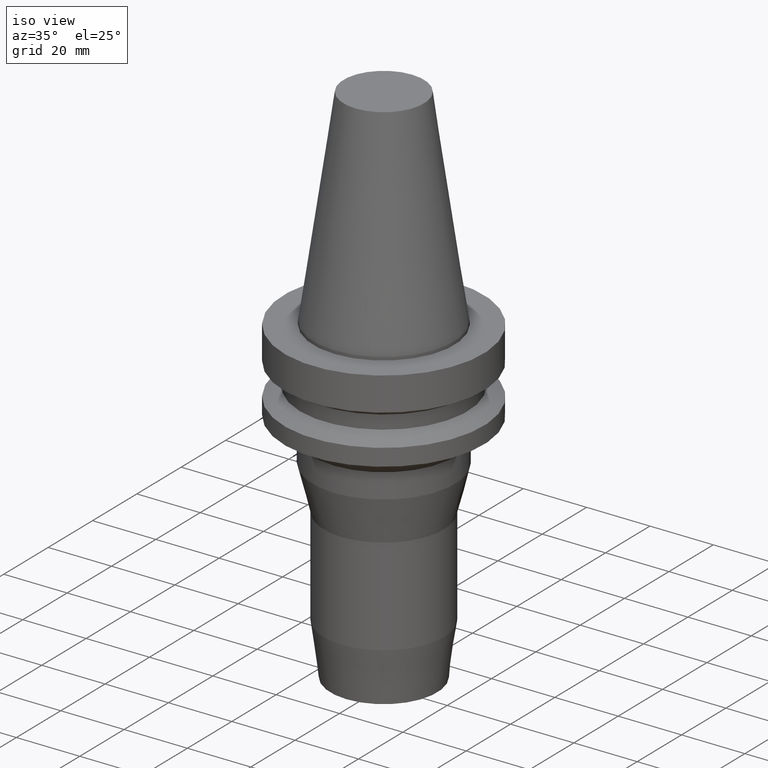
[diagram: clean part render]
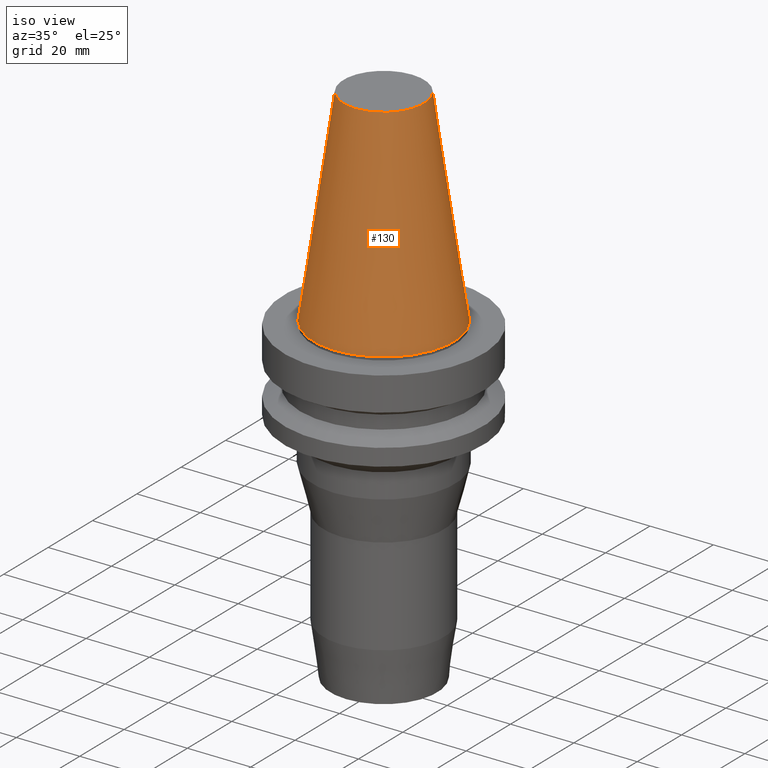
[diagram: same view with one face highlighted and labeled with its STEP entity id]
A machine part, iso view. The second image highlights one B-rep face of the part: STEP entity #130.
In plain terms, the highlighted conical surface has half-angle 8.297 deg.
Its self-contained STEP definition (entity closure, byte-faithful):
#66=EDGE_CURVE('Unnamed[1]',#168,#168,#169,.T.);
#125=EDGE_CURVE('Unnamed[1]',#260,#260,#261,.T.);
#130=ADVANCED_FACE('Unnamed[1]',(#267,#268),#269,.T.);
#168=VERTEX_POINT('',#305);
#169=CIRCLE('',#306,22.225);
#260=VERTEX_POINT('',#419);
#261=CIRCLE('',#420,12.6875000000001);
#267=FACE_BOUND('',#428,.T.);
#268=FACE_BOUND('',#429,.T.);
#269=CONICAL_SURFACE('',#430,17.45625,0.144812498238936);
#305=CARTESIAN_POINT('',(1.71319921032766E-029,22.2250000000001,-2.8153873565375E-013));
#306=AXIS2_PLACEMENT_3D('',#459,#460,#461);
#419=CARTESIAN_POINT('',(-4.00459503321185E-015,12.6875000000002,65.4000000000001));
#420=AXIS2_PLACEMENT_3D('',#561,#562,#563);
#428=EDGE_LOOP('',(#568));
#429=EDGE_LOOP('',(#569));
#430=AXIS2_PLACEMENT_3D('',#570,#571,#572);
#459=CARTESIAN_POINT('',(1.74032777401202E-029,8.53E-014,-2.8421709430404E-013));
#460=DIRECTION('',(6.12323399573677E-017,1.22464679914758E-016,-1.0));
#461=DIRECTION('',(-1.23259516440816E-032,1.0,1.22464679914758E-016));
#561=CARTESIAN_POINT('',(-4.00459503321185E-015,7.72908099335763E-014,65.4000000000001));
#562=DIRECTION('',(6.12323399573677E-017,1.22464679914695E-016,-1.0));
#563=DIRECTION('',(-1.23259516440782E-032,1.0,1.22464679914695E-016));
#568=ORIENTED_EDGE('',*,*,#66,.F.);
#569=ORIENTED_EDGE('',*,*,#125,.T.);
#570=CARTESIAN_POINT('',(-2.00229751660592E-015,8.12954049667882E-014,32.6999999999999));
#571=DIRECTION('',(6.12323399573677E-017,1.22464679914735E-016,-1.0));
#572=DIRECTION('',(-1.23259516440803E-032,1.0,1.22464679914735E-016));